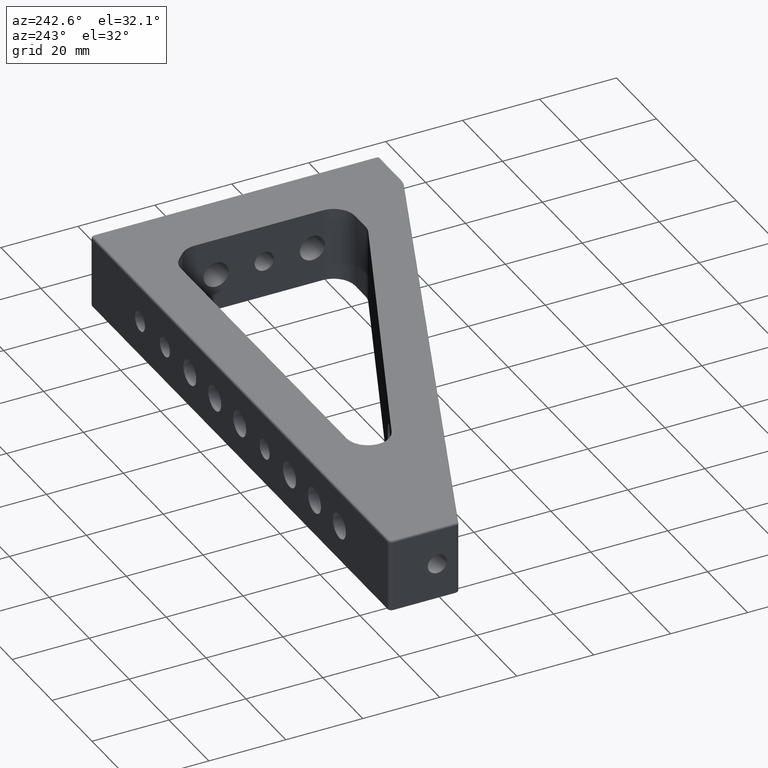
[diagram: clean part render]
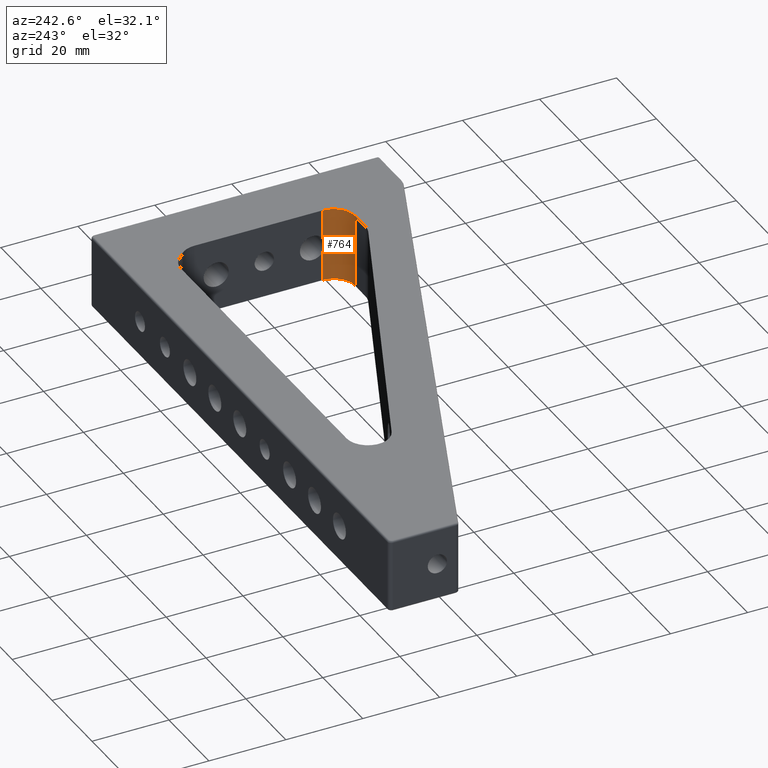
[diagram: same view with one face highlighted and labeled with its STEP entity id]
A machine part, auxiliary view. The second image highlights one B-rep face of the part: STEP entity #764.
In plain terms, the highlighted cylindrical surface (edge-blend (fillet) strip) has radius 5.5 mm, axis along (-0, -0, -1).
Its self-contained STEP definition (entity closure, byte-faithful):
#1 = DIRECTION ( 'NONE',  ( -0.0000000000000000000, -0.0000000000000000000, -1.000000000000000000 ) ) ;
#69 = CARTESIAN_POINT ( 'NONE',  ( 784.1671691626518200, 602.4387034273054300, 9.500000000000000000 ) ) ;
#70 = DIRECTION ( 'NONE',  ( 0.0000000000000000000, 0.0000000000000000000, 1.000000000000000000 ) ) ;
#71 = DIRECTION ( 'NONE',  ( 1.000000000000000000, 0.0000000000000000000, 0.0000000000000000000 ) ) ;
#146 = EDGE_CURVE ( 'NONE', #1271, #1272, #2058, .T. ) ;
#147 = EDGE_CURVE ( 'NONE', #1271, #1245, #897, .T. ) ;
#148 = EDGE_CURVE ( 'NONE', #1216, #1235, #910, .T. ) ;
#149 = EDGE_CURVE ( 'NONE', #1214, #1272, #894, .T. ) ;
#243 = DIRECTION ( 'NONE',  ( -1.000000000000000000, 0.0000000000000000000, 0.0000000000000000000 ) ) ;
#246 = DIRECTION ( 'NONE',  ( -0.0000000000000000000, -0.0000000000000000000, -1.000000000000000000 ) ) ;
#247 = CARTESIAN_POINT ( 'NONE',  ( 784.1671691626518200, 602.4387034273054300, 9.500000000000000000 ) ) ;
#522 = CARTESIAN_POINT ( 'NONE',  ( 784.1671691626518200, 602.4387034273054300, -9.500000000000000000 ) ) ;
#523 = DIRECTION ( 'NONE',  ( 0.0000000000000000000, 0.0000000000000000000, 1.000000000000000000 ) ) ;
#524 = DIRECTION ( 'NONE',  ( 1.000000000000000000, 0.0000000000000000000, 0.0000000000000000000 ) ) ;
#636 = AXIS2_PLACEMENT_3D ( 'NONE', #247, #246, #243 ) ;
#681 = EDGE_CURVE ( 'NONE', #1216, #1214, #846, .T. ) ;
#704 = EDGE_CURVE ( 'NONE', #1235, #1245, #802, .T. ) ;
#764 = ADVANCED_FACE ( 'NONE', ( #1609 ), #1584, .F. ) ;
#802 = CIRCLE ( 'NONE', #1977, 5.499999999999949400 ) ;
#846 = CIRCLE ( 'NONE', #1989, 5.499999999999949400 ) ;
#890 = VECTOR ( 'NONE', #1, 1000.000000000000000 ) ;
#892 = VECTOR ( 'NONE', #2070, 1000.000000000000000 ) ;
#894 = LINE ( 'NONE', #2073, #890 ) ;
#895 = VECTOR ( 'NONE', #2074, 1000.000000000000000 ) ;
#897 = LINE ( 'NONE', #1717, #895 ) ;
#910 = LINE ( 'NONE', #1720, #892 ) ;
#1138 = ORIENTED_EDGE ( 'NONE', *, *, #149, .T. ) ;
#1139 = ORIENTED_EDGE ( 'NONE', *, *, #681, .T. ) ;
#1140 = ORIENTED_EDGE ( 'NONE', *, *, #148, .F. ) ;
#1141 = ORIENTED_EDGE ( 'NONE', *, *, #704, .F. ) ;
#1142 = ORIENTED_EDGE ( 'NONE', *, *, #147, .T. ) ;
#1143 = ORIENTED_EDGE ( 'NONE', *, *, #146, .F. ) ;
#1214 = VERTEX_POINT ( 'NONE', #1891 ) ;
#1216 = VERTEX_POINT ( 'NONE', #1893 ) ;
#1235 = VERTEX_POINT ( 'NONE', #1910 ) ;
#1245 = VERTEX_POINT ( 'NONE', #1919 ) ;
#1271 = VERTEX_POINT ( 'NONE', #1945 ) ;
#1272 = VERTEX_POINT ( 'NONE', #1946 ) ;
#1286 = EDGE_LOOP ( 'NONE', ( #1143, #1142, #1141, #1140, #1139, #1138 ) ) ;
#1584 = CYLINDRICAL_SURFACE ( 'NONE', #636, 5.499999999999949400 ) ;
#1609 = FACE_OUTER_BOUND ( 'NONE', #1286, .T. ) ;
#1713 = CARTESIAN_POINT ( 'NONE',  ( 789.6394640034893700, 601.8873512743442700, 0.1567405256806484500 ) ) ;
#1714 = CARTESIAN_POINT ( 'NONE',  ( 789.6394934839432800, 601.8876439529883600, -0.1626960441403879900 ) ) ;
#1715 = CARTESIAN_POINT ( 'NONE',  ( 789.6588730192320300, 602.1224800233172800, -1.255025555984469900 ) ) ;
#1716 = CARTESIAN_POINT ( 'NONE',  ( 789.6671691626517000, 602.2587770190052700, -1.542646566229476600 ) ) ;
#1717 = CARTESIAN_POINT ( 'NONE',  ( 789.6671691626518200, 602.4387034273054300, 9.500000000000000000 ) ) ;
#1718 = CARTESIAN_POINT ( 'NONE',  ( 789.6671691626518200, 602.4387034273054300, -1.810805705438078800 ) ) ;
#1719 = CARTESIAN_POINT ( 'NONE',  ( 789.6407252749864900, 601.8994995387116700, -0.3214015446246507600 ) ) ;
#1720 = CARTESIAN_POINT ( 'NONE',  ( 784.1671691626518200, 596.9387034273054300, 9.500000000000000000 ) ) ;
#1722 = CARTESIAN_POINT ( 'NONE',  ( 789.6451524584501800, 601.9465079790278400, -0.6368009969166139600 ) ) ;
#1724 = CARTESIAN_POINT ( 'NONE',  ( 789.6483831937664500, 601.9820910451750300, -0.7947615957484275300 ) ) ;
#1891 = CARTESIAN_POINT ( 'NONE',  ( 789.6671691626518200, 602.4387034273054300, 9.500000000000000000 ) ) ;
#1893 = CARTESIAN_POINT ( 'NONE',  ( 784.1671691626518200, 596.9387034273054300, 9.500000000000000000 ) ) ;
#1910 = CARTESIAN_POINT ( 'NONE',  ( 784.1671691626518200, 596.9387034273054300, -9.500000000000000000 ) ) ;
#1919 = CARTESIAN_POINT ( 'NONE',  ( 789.6671691626518200, 602.4387034273054300, -9.500000000000000000 ) ) ;
#1945 = CARTESIAN_POINT ( 'NONE',  ( 789.6671691626518200, 602.4387034273054300, -1.810805705438078800 ) ) ;
#1946 = CARTESIAN_POINT ( 'NONE',  ( 789.6671691626518200, 602.4387034273054300, 1.810805705438078800 ) ) ;
#1977 = AXIS2_PLACEMENT_3D ( 'NONE', #522, #523, #524 ) ;
#1989 = AXIS2_PLACEMENT_3D ( 'NONE', #69, #70, #71 ) ;
#2058 = B_SPLINE_CURVE_WITH_KNOTS ( 'NONE', 3,
 ( #1718, #1716, #1715, #1724, #1722, #1719, #1714, #1713, #2072, #2075, #2069, #2078, #2077, #2076 ),
 .UNSPECIFIED., .F., .F.,
 ( 4, 2, 2, 2, 2, 2, 4 ),
 ( 0.0000000000000000000, 0.0009549330650396764800, 0.001432399597559470000, 0.001909866130079263400, 0.002387332662599057000, 0.002864799195118850700, 0.003819732260158431000 ),
 .UNSPECIFIED. ) ;
#2069 = CARTESIAN_POINT ( 'NONE',  ( 789.6482957239826400, 601.9811013762317800, 0.7905957074902245600 ) ) ;
#2070 = DIRECTION ( 'NONE',  ( -0.0000000000000000000, -0.0000000000000000000, -1.000000000000000000 ) ) ;
#2072 = CARTESIAN_POINT ( 'NONE',  ( 789.6406961286213600, 601.8992046120246200, 0.3187035004319610000 ) ) ;
#2073 = CARTESIAN_POINT ( 'NONE',  ( 789.6671691626518200, 602.4387034273054300, 9.500000000000000000 ) ) ;
#2074 = DIRECTION ( 'NONE',  ( -0.0000000000000000000, -0.0000000000000000000, -1.000000000000000000 ) ) ;
#2075 = CARTESIAN_POINT ( 'NONE',  ( 789.6451223180661100, 601.9461735845867500, 0.6352671083426416600 ) ) ;
#2076 = CARTESIAN_POINT ( 'NONE',  ( 789.6671691626518200, 602.4387034273054300, 1.810805705438078800 ) ) ;
#2077 = CARTESIAN_POINT ( 'NONE',  ( 789.6671691626519300, 602.2587958136084600, 1.542674577373614600 ) ) ;
#2078 = CARTESIAN_POINT ( 'NONE',  ( 789.6586955528202900, 602.1197520517378100, 1.247878452313006400 ) ) ;